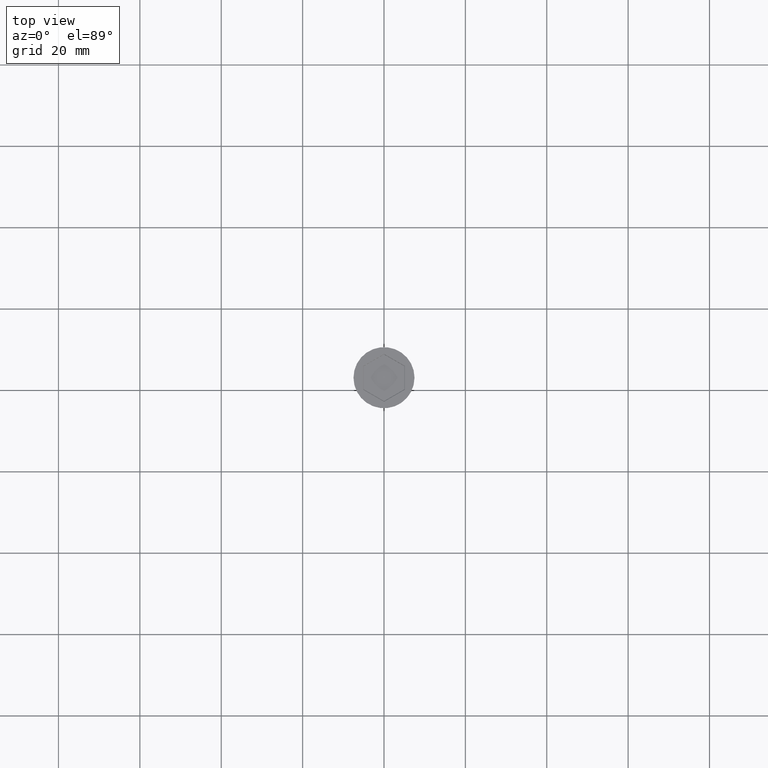
[diagram: clean part render]
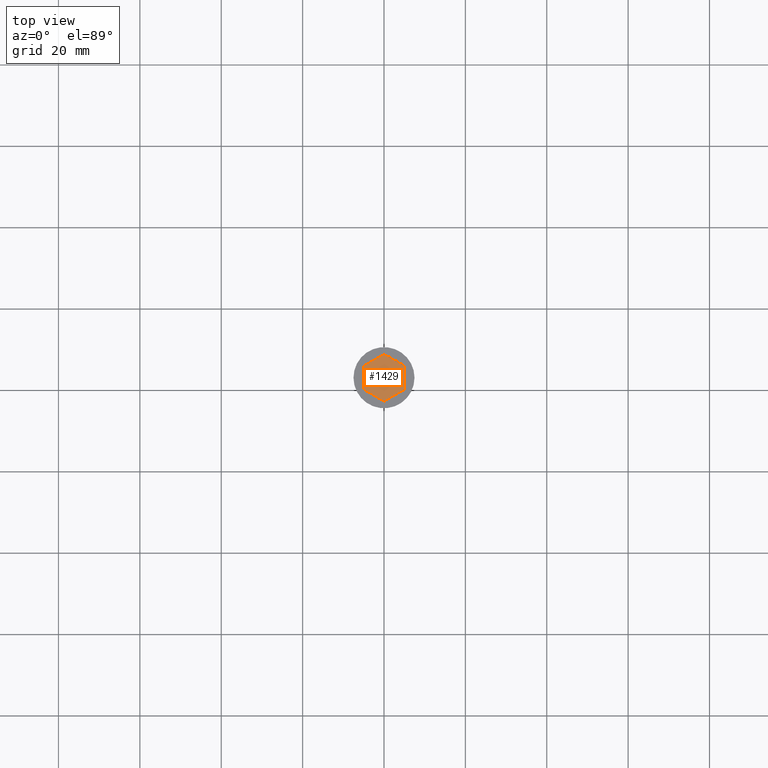
[diagram: same view with one face highlighted and labeled with its STEP entity id]
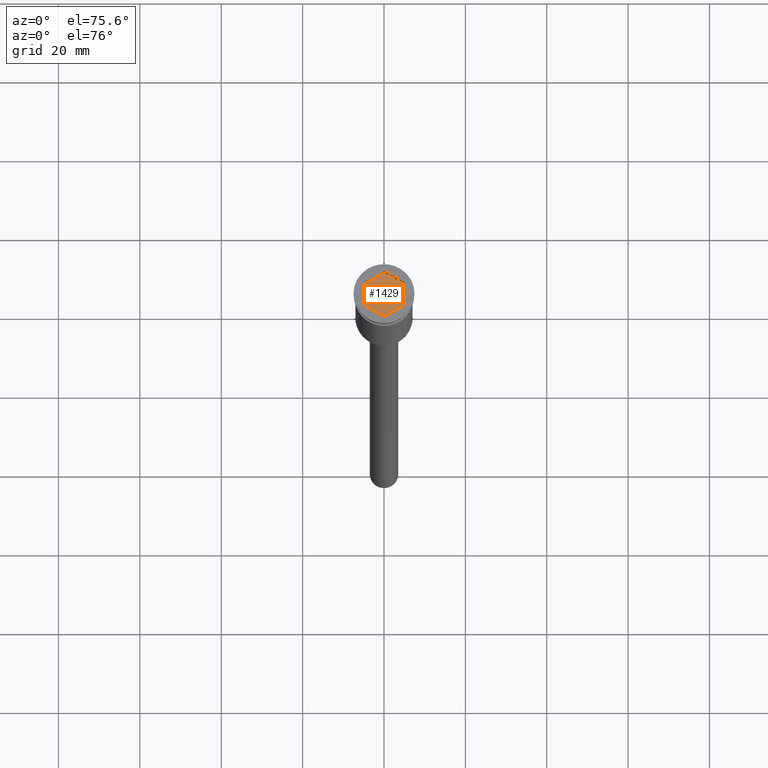
[diagram: same view with one face highlighted and labeled with its STEP entity id]
A machine part, top view. The second image highlights one B-rep face of the part: STEP entity #1429.
A second angle (auxiliary view) of the same face is appended — the face is thin or edge-on in the first view.
In plain terms, the highlighted planar face has unit normal (-0, 0, 1).
Its self-contained STEP definition (entity closure, byte-faithful):
#41 = FACE_OUTER_BOUND ( 'NONE', #57, .T. ) ;
#48 = VERTEX_POINT ( 'NONE', #654 ) ;
#57 = EDGE_LOOP ( 'NONE', ( #210, #423, #1102, #329, #67, #483 ) ) ;
#67 = ORIENTED_EDGE ( 'NONE', *, *, #380, .T. ) ;
#124 = VECTOR ( 'NONE', #589, 1000.000000000000227 ) ;
#193 = CARTESIAN_POINT ( 'NONE',  ( 2.499999999999997780, 4.330127018922194537, -2.000000000000000000 ) ) ;
#210 = ORIENTED_EDGE ( 'NONE', *, *, #547, .T. ) ;
#220 = CARTESIAN_POINT ( 'NONE',  ( 2.499999999999999556, -4.330127018922193649, -2.000000000000000000 ) ) ;
#232 = VERTEX_POINT ( 'NONE', #848 ) ;
#277 = VERTEX_POINT ( 'NONE', #279 ) ;
#279 = CARTESIAN_POINT ( 'NONE',  ( 4.999999999999999112, 2.886751345948129543, -2.000000000000000000 ) ) ;
#283 = LINE ( 'NONE', #193, #512 ) ;
#329 = ORIENTED_EDGE ( 'NONE', *, *, #404, .T. ) ;
#380 = EDGE_CURVE ( 'NONE', #1484, #1444, #1118, .T. ) ;
#404 = EDGE_CURVE ( 'NONE', #48, #1484, #1522, .T. ) ;
#423 = ORIENTED_EDGE ( 'NONE', *, *, #1386, .T. ) ;
#439 = EDGE_CURVE ( 'NONE', #232, #48, #566, .T. ) ;
#483 = ORIENTED_EDGE ( 'NONE', *, *, #1069, .T. ) ;
#498 = DIRECTION ( 'NONE',  ( -0.000000000000000000, 0.000000000000000000, 1.000000000000000000 ) ) ;
#512 = VECTOR ( 'NONE', #662, 1000.000000000000114 ) ;
#547 = EDGE_CURVE ( 'NONE', #277, #1441, #283, .T. ) ;
#565 = CARTESIAN_POINT ( 'NONE',  ( 4.999999999999999112, -2.886751345948129543, -2.000000000000000000 ) ) ;
#566 = LINE ( 'NONE', #808, #738 ) ;
#576 = CARTESIAN_POINT ( 'NONE',  ( 8.673617379884035472E-16, -5.773502691896257311, -2.000000000000000000 ) ) ;
#589 = DIRECTION ( 'NONE',  ( 0.8660254037844385966, 0.4999999999999998890, 0.000000000000000000 ) ) ;
#640 = DIRECTION ( 'NONE',  ( -0.8660254037844385966, -0.4999999999999999445, 0.000000000000000000 ) ) ;
#654 = CARTESIAN_POINT ( 'NONE',  ( -4.999999999999999112, -2.886751345948129543, -2.000000000000000000 ) ) ;
#662 = DIRECTION ( 'NONE',  ( -0.8660254037844388186, 0.4999999999999996114, 0.000000000000000000 ) ) ;
#738 = VECTOR ( 'NONE', #1278, 1000.000000000000000 ) ;
#769 = CARTESIAN_POINT ( 'NONE',  ( -2.499999999999999112, 4.330127018922192761, -2.000000000000000000 ) ) ;
#796 = CARTESIAN_POINT ( 'NONE',  ( 0.000000000000000000, 0.000000000000000000, -2.000000000000000000 ) ) ;
#802 = DIRECTION ( 'NONE',  ( 0.000000000000000000, 1.000000000000000000, -0.000000000000000000 ) ) ;
#808 = CARTESIAN_POINT ( 'NONE',  ( -4.999999999999999112, 0.000000000000000000, -2.000000000000000000 ) ) ;
#811 = LINE ( 'NONE', #769, #1456 ) ;
#848 = CARTESIAN_POINT ( 'NONE',  ( -4.999999999999999112, 2.886751345948128655, -2.000000000000000000 ) ) ;
#1008 = DIRECTION ( 'NONE',  ( 1.000000000000000000, 0.000000000000000000, 0.000000000000000000 ) ) ;
#1048 = VECTOR ( 'NONE', #802, 1000.000000000000000 ) ;
#1069 = EDGE_CURVE ( 'NONE', #1444, #277, #1134, .T. ) ;
#1072 = DIRECTION ( 'NONE',  ( 0.8660254037844387076, -0.4999999999999998890, 0.000000000000000000 ) ) ;
#1102 = ORIENTED_EDGE ( 'NONE', *, *, #439, .T. ) ;
#1118 = LINE ( 'NONE', #220, #124 ) ;
#1134 = LINE ( 'NONE', #1458, #1048 ) ;
#1160 = PLANE ( 'NONE',  #1592 ) ;
#1241 = CARTESIAN_POINT ( 'NONE',  ( 0.000000000000000000, 5.773502691896255534, -2.000000000000000000 ) ) ;
#1278 = DIRECTION ( 'NONE',  ( 0.000000000000000000, -1.000000000000000000, 0.000000000000000000 ) ) ;
#1353 = VECTOR ( 'NONE', #1072, 1000.000000000000114 ) ;
#1386 = EDGE_CURVE ( 'NONE', #1441, #232, #811, .T. ) ;
#1407 = CARTESIAN_POINT ( 'NONE',  ( -2.499999999999999112, -4.330127018922193649, -2.000000000000000000 ) ) ;
#1429 = ADVANCED_FACE ( 'NONE', ( #41 ), #1160, .T. ) ;
#1441 = VERTEX_POINT ( 'NONE', #1241 ) ;
#1444 = VERTEX_POINT ( 'NONE', #565 ) ;
#1456 = VECTOR ( 'NONE', #640, 1000.000000000000114 ) ;
#1458 = CARTESIAN_POINT ( 'NONE',  ( 4.999999999999999112, 0.000000000000000000, -2.000000000000000000 ) ) ;
#1484 = VERTEX_POINT ( 'NONE', #576 ) ;
#1522 = LINE ( 'NONE', #1407, #1353 ) ;
#1592 = AXIS2_PLACEMENT_3D ( 'NONE', #796, #498, #1008 ) ;